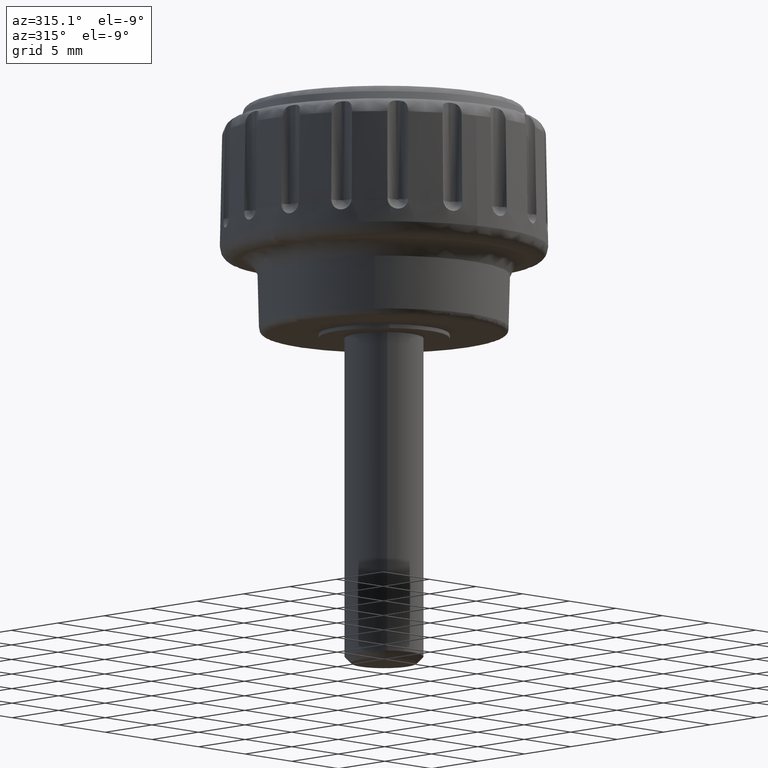
[diagram: clean part render]
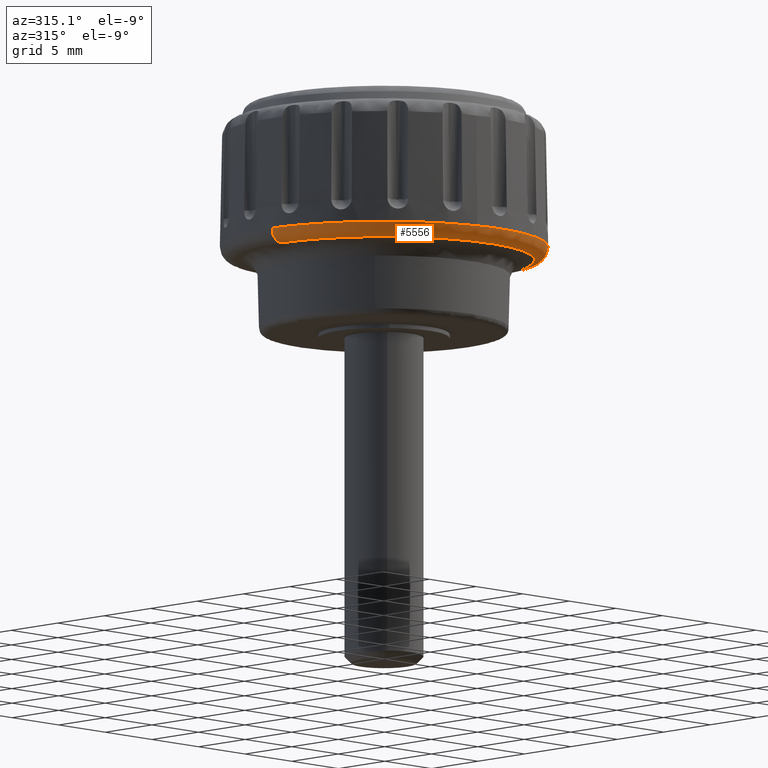
[diagram: same view with one face highlighted and labeled with its STEP entity id]
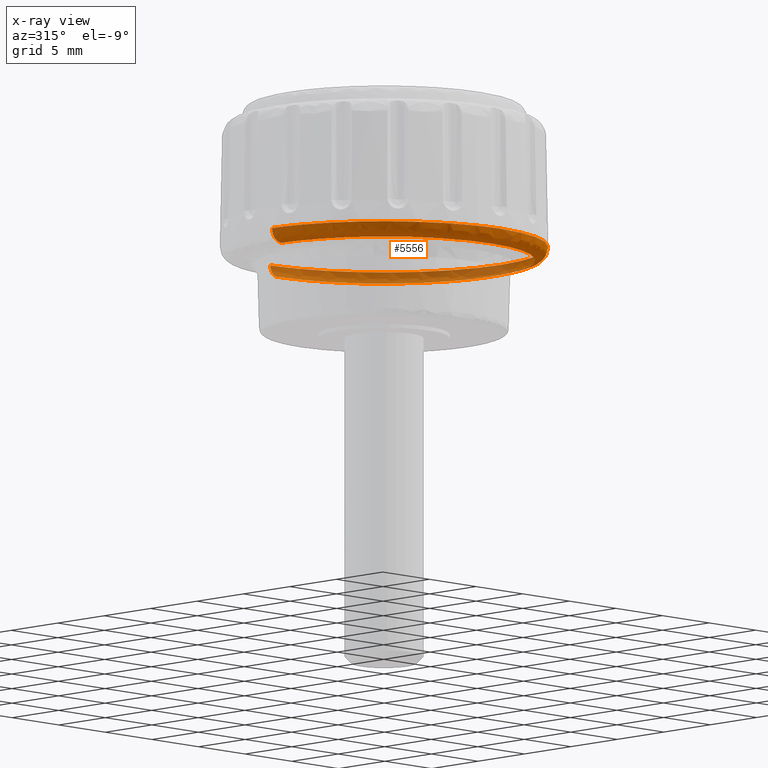
[diagram: x-ray of the same camera — body ghosted, the highlighted face saturated]
A machine part, auxiliary view. The second image highlights one B-rep face of the part: STEP entity #5556.
The next image is the same camera in x-ray: the body ghosted, the highlighted face saturated — about 37% of this face is hidden behind the body in this view.
In plain terms, the highlighted face is a freeform B-spline surface patch.
Its self-contained STEP definition (entity closure, byte-faithful):
#1913=CARTESIAN_POINT('',(2.914446903844929,12.134245757101640,7.020244848311712));
#1914=VERTEX_POINT('',#1913);
#1915=CARTESIAN_POINT('',(12.479339775979300,0.0,7.020244063727410));
#1916=VERTEX_POINT('',#1915);
#1917=CARTESIAN_POINT('',(2.914446903844929,12.134245757101640,7.020244848311712));
#1918=CARTESIAN_POINT('',(3.399610096655220,12.017730701480440,7.020244835623239));
#1919=CARTESIAN_POINT('',(4.376720298687912,11.720061669743661,7.020244806645689));
#1920=CARTESIAN_POINT('',(5.886300649277611,11.049123865005431,7.020244750410749));
#1921=CARTESIAN_POINT('',(7.382687315472131,10.118366461417819,7.020244680233293));
#1922=CARTESIAN_POINT('',(8.840431582089897,8.877807049344654,7.020244593731314));
#1923=CARTESIAN_POINT('',(9.935193952392039,7.608918816061425,7.020244510447437));
#1924=CARTESIAN_POINT('',(10.833394905045610,6.250113309285700,7.020244424854764));
#1925=CARTESIAN_POINT('',(11.453004063922069,5.028399300450916,7.020244350360998));
#1926=CARTESIAN_POINT('',(11.962264473414480,3.641968937104353,7.020244268364826));
#1927=CARTESIAN_POINT('',(12.364128265041851,2.017501421185323,7.020244174844168));
#1928=CARTESIAN_POINT('',(12.479426310907060,0.759289723549299,7.020244104976773));
#1929=CARTESIAN_POINT('',(12.479339775979300,0.0,7.020244063727410));
#1930=B_SPLINE_CURVE_WITH_KNOTS('',3,(#1917,#1918,#1919,#1920,#1921,#1922,#1923,#1924,#1925,#1926,#1927,#1928,#1929),.UNSPECIFIED.,.F.,.U.,(4,1,1,1,1,1,1,1,1,1,4),(0.000000013760989,1.496874883908451,3.058834941180857,4.946209869346665,6.768495263843622,8.786022795933356,9.957486672167367,11.649616012552389,12.886172091508699,14.383055982069781,16.660907701439619),.UNSPECIFIED.);
#1931=EDGE_CURVE('',#1914,#1916,#1930,.T.);
#2613=CARTESIAN_POINT('',(-2.215691117754196,-12.281068106917470,7.020244594559211));
#2614=VERTEX_POINT('',#2613);
#2620=CARTESIAN_POINT('',(0.235205370654172,-12.477123052929890,7.020244063727410));
#2621=VERTEX_POINT('',#2620);
#2622=CARTESIAN_POINT('',(0.235205370654172,-12.477123052929890,7.020244063727410));
#2623=CARTESIAN_POINT('',(-0.585559114056622,-12.492653480853249,7.020244241293555));
#2624=CARTESIAN_POINT('',(-1.407833844665075,-12.426891777500630,7.020244419387384));
#2625=CARTESIAN_POINT('',(-2.215691117754196,-12.281068106917470,7.020244594559211));
#2626=B_SPLINE_CURVE_WITH_KNOTS('',3,(#2622,#2623,#2624,#2625),.UNSPECIFIED.,.F.,.U.,(4,4),(3.176965E-010,2.462723699262299),.UNSPECIFIED.);
#2627=EDGE_CURVE('',#2621,#2614,#2626,.T.);
#2629=CARTESIAN_POINT('',(12.479339775979300,0.0,7.020244063727410));
#2630=CARTESIAN_POINT('',(12.479345198028289,-0.428699316055713,7.020244060972424));
#2631=CARTESIAN_POINT('',(12.429921493944130,-1.386973151964286,7.020244055137916));
#2632=CARTESIAN_POINT('',(12.186735262928810,-2.832255620254348,7.020244047442616));
#2633=CARTESIAN_POINT('',(11.788058172133731,-4.163369228497104,7.020244041499216));
#2634=CARTESIAN_POINT('',(11.255074436008959,-5.445214427778428,7.020244036752022));
#2635=CARTESIAN_POINT('',(10.588612693714090,-6.664788305308308,7.020244033279019));
#2636=CARTESIAN_POINT('',(9.746708644953271,-7.833102228852622,7.020244031284374));
#2637=CARTESIAN_POINT('',(8.749427528950301,-8.939598993400301,7.020244030704459));
#2638=CARTESIAN_POINT('',(7.665241974955558,-9.888675197629326,7.020244031705326));
#2639=CARTESIAN_POINT('',(6.368285871324939,-10.766036458148470,7.020244034560338));
#2640=CARTESIAN_POINT('',(5.178244161969294,-11.380372055625980,7.020244038405597));
#2641=CARTESIAN_POINT('',(3.907716969310209,-11.873830818655520,7.020244043554594));
#2642=CARTESIAN_POINT('',(2.325517107600600,-12.312485795654080,7.020244051096810));
#2643=CARTESIAN_POINT('',(1.042043679483106,-12.462024292436819,7.020244058540764));
#2644=CARTESIAN_POINT('',(0.235205370654172,-12.477123052929890,7.020244063727410));
#2645=B_SPLINE_CURVE_WITH_KNOTS('',3,(#2629,#2630,#2631,#2632,#2633,#2634,#2635,#2636,#2637,#2638,#2639,#2640,#2641,#2642,#2643,#2644),.UNSPECIFIED.,.F.,.U.,(4,1,1,1,1,1,1,1,1,1,1,1,1,4),(0.000000015402009,1.286099444482971,2.874828309489672,4.387904935526157,5.447058304347095,7.035789087986103,8.548863698983331,9.759299808151161,11.499330465493660,12.861105013138760,14.449829750327631,15.508981849974820,16.946397836414050,19.367311440243419),.UNSPECIFIED.);
#2646=EDGE_CURVE('',#1916,#2621,#2645,.T.);
#2673=CARTESIAN_POINT('',(0.243636251334517,12.476961270290680,7.020244224086004));
#2674=VERTEX_POINT('',#2673);
#2675=CARTESIAN_POINT('',(0.243636251334517,12.476961270290680,7.020244224086004));
#2676=CARTESIAN_POINT('',(1.142791681229451,12.459471636268081,7.020244433767296));
#2677=CARTESIAN_POINT('',(2.040012828473089,12.344388544948000,7.020244643466857));
#2678=CARTESIAN_POINT('',(2.914446903844929,12.134245757101640,7.020244848311712));
#2679=B_SPLINE_CURVE_WITH_KNOTS('',3,(#2675,#2676,#2677,#2678),.UNSPECIFIED.,.F.,.U.,(4,4),(2.232419E-010,2.697965647910356),.UNSPECIFIED.);
#2680=EDGE_CURVE('',#2674,#1914,#2679,.T.);
#2703=CARTESIAN_POINT('',(-12.470472860376169,-0.470348596142471,7.020244224137949));
#2704=VERTEX_POINT('',#2703);
#2710=CARTESIAN_POINT('',(-2.215691117754196,-12.281068106917470,7.020244594559211));
#2711=CARTESIAN_POINT('',(-2.800554297557448,-12.175578858922760,7.020244593699585));
#2712=CARTESIAN_POINT('',(-3.976534147297959,-11.875342393444051,7.020244588827159));
#2713=CARTESIAN_POINT('',(-5.768973581183829,-11.127204139640890,7.020244571036953));
#2714=CARTESIAN_POINT('',(-7.400848875240683,-10.111259687742651,7.020244542895923));
#2715=CARTESIAN_POINT('',(-8.702614746706756,-8.985645119600310,7.020244509203824));
#2716=CARTESIAN_POINT('',(-9.800882492215829,-7.779993691739545,7.020244471646201));
#2717=CARTESIAN_POINT('',(-10.701127686171720,-6.496925345208597,7.020244430343769));
#2718=CARTESIAN_POINT('',(-11.426166803037439,-5.084389895042116,7.020244383553010));
#2719=CARTESIAN_POINT('',(-11.947072634408110,-3.702494245344731,7.020244336841762));
#2720=CARTESIAN_POINT('',(-12.325480147666870,-2.182959842720413,7.020244284513296));
#2721=CARTESIAN_POINT('',(-12.448101102727399,-1.064227680056931,7.020244245212531));
#2722=CARTESIAN_POINT('',(-12.470472860376169,-0.470348596142471,7.020244224137949));
#2723=B_SPLINE_CURVE_WITH_KNOTS('',3,(#2710,#2711,#2712,#2713,#2714,#2715,#2716,#2717,#2718,#2719,#2720,#2721,#2722),.UNSPECIFIED.,.F.,.U.,(4,1,1,1,1,1,1,1,1,1,4),(0.000000014246535,1.782899683378876,3.631837068624668,5.810947974992359,7.527812766868262,8.782434104507743,10.697415301169089,12.216185422671650,13.536855623499211,15.121661906826271,16.904560266523500),.UNSPECIFIED.);
#2724=EDGE_CURVE('',#2614,#2704,#2723,.T.);
#5434=CARTESIAN_POINT('',(0.243560200035291,12.473066589279085,7.090464935737364));
#5435=CARTESIAN_POINT('',(12.022543539732435,12.243059676552834,7.090464935737362));
#5436=CARTESIAN_POINT('',(12.466580204734974,0.470201776412435,7.090464935737362));
#5437=CARTESIAN_POINT('',(12.936781981147409,-11.996378428322538,7.090464935737365));
#5438=CARTESIAN_POINT('',(0.470201776412436,-12.466580204734974,7.090464935737362));
#5439=CARTESIAN_POINT('',(-11.996378428322535,-12.936781981147412,7.090464935737365));
#5440=CARTESIAN_POINT('',(-12.466580204734974,-0.470201776412431,7.090464935737362));
#5441=CARTESIAN_POINT('',(0.245635878921216,12.579365077120489,5.920035688234066));
#5442=CARTESIAN_POINT('',(12.125002561267644,12.347397989898189,5.920035688234067));
#5443=CARTESIAN_POINT('',(12.572823414039732,0.474208949584744,5.920035688234068));
#5444=CARTESIAN_POINT('',(13.047032363624474,-12.098614464454982,5.920035688234064));
#5445=CARTESIAN_POINT('',(0.474208949584745,-12.572823414039732,5.920035688234068));
#5446=CARTESIAN_POINT('',(-12.098614464454982,-13.047032363624474,5.920035688234064));
#5447=CARTESIAN_POINT('',(-12.572823414039732,-0.474208949584740,5.920035688234068));
#5448=CARTESIAN_POINT('',(0.222747812660904,11.407234431295230,6.002462540117822));
#5449=CARTESIAN_POINT('',(10.995208887609129,11.196881768178532,6.002462540117821));
#5450=CARTESIAN_POINT('',(11.401302312792005,0.430022709744719,6.002462540117821));
#5451=CARTESIAN_POINT('',(11.831325022536726,-10.971279603047288,6.002462540117820));
#5452=CARTESIAN_POINT('',(0.430022709744719,-11.401302312792005,6.002462540117821));
#5453=CARTESIAN_POINT('',(-10.971279603047288,-11.831325022536726,6.002462540117820));
#5454=CARTESIAN_POINT('',(-11.401302312792005,-0.430022709744715,6.002462540117821));
#5462=(BOUNDED_SURFACE()B_SPLINE_SURFACE(2,2,((#5434,#5441,#5448),(#5435,#5442,#5449),(#5436,#5443,#5450),(#5437,#5444,#5451),(#5438,#5445,#5452),(#5439,#5446,#5453),(#5440,#5447,#5454)),.UNSPECIFIED.,.F.,.F.,.U.)B_SPLINE_SURFACE_WITH_KNOTS((3,2,2,3),(3,3),(0.0,19.843193265011490,40.513186249398451,61.183179233785417),(0.0,1.848515857226823),.UNSPECIFIED.)GEOMETRIC_REPRESENTATION_ITEM()RATIONAL_B_SPLINE_SURFACE(((0.893442871583781,0.579620158140347,0.895400972402263),(0.657005663717428,0.426231758979666,0.658445580435988),(0.914002628789551,0.592958279806493,0.916005789094982),(0.646297456839423,0.419284820611881,0.647713905075197),(0.914002628789551,0.592958279806493,0.916005789094982),(0.646297456839423,0.419284820611881,0.647713905075197),(0.914002628789551,0.592958279806493,0.916005789094982)))REPRESENTATION_ITEM('')SURFACE());
#5463=ORIENTED_EDGE('',*,*,#2680,.T.);
#5464=ORIENTED_EDGE('',*,*,#1931,.T.);
#5465=ORIENTED_EDGE('',*,*,#2646,.T.);
#5466=ORIENTED_EDGE('',*,*,#2627,.T.);
#5467=ORIENTED_EDGE('',*,*,#2724,.T.);
#5468=CARTESIAN_POINT('',(-11.471389542278169,-0.432666191569736,6.000000000000319));
#5469=VERTEX_POINT('',#5468);
#5470=CARTESIAN_POINT('',(-12.470472860376169,-0.470348596142471,7.020244224137949));
#5471=CARTESIAN_POINT('',(-12.471815061050370,-0.470399219867572,6.953968773798331));
#5472=CARTESIAN_POINT('',(-12.459330155234881,-0.469928326873107,6.796227551094516));
#5473=CARTESIAN_POINT('',(-12.389330664015169,-0.467288157466956,6.581531946653136));
#5474=CARTESIAN_POINT('',(-12.271571868133430,-0.462846651399162,6.390027774103063));
#5475=CARTESIAN_POINT('',(-12.135376322356670,-0.457709766849995,6.243848056981501));
#5476=CARTESIAN_POINT('',(-11.973001236879320,-0.451585469175279,6.127475021194790));
#5477=CARTESIAN_POINT('',(-11.752902012714600,-0.443283991404678,6.028404839768322));
#5478=CARTESIAN_POINT('',(-11.579047814260500,-0.436726736309962,5.999938855730730));
#5479=CARTESIAN_POINT('',(-11.471389542278169,-0.432666191569736,6.000000000000319));
#5480=B_SPLINE_CURVE_WITH_KNOTS('',3,(#5470,#5471,#5472,#5473,#5474,#5475,#5476,#5477,#5478,#5479),.UNSPECIFIED.,.F.,.U.,(4,1,1,1,1,1,1,4),(0.000000028766090,0.198876413884139,0.472354584867229,0.671246527265676,0.870116115985862,1.069002743957115,1.267895341970568,1.591081542972834),.UNSPECIFIED.);
#5481=EDGE_CURVE('',#2704,#5469,#5480,.T.);
#5482=ORIENTED_EDGE('',*,*,#5481,.T.);
#5483=CARTESIAN_POINT('',(0.216351632203362,-11.477507061089490,5.999999999999800));
#5484=VERTEX_POINT('',#5483);
#5485=CARTESIAN_POINT('',(0.216351632203362,-11.477507061089490,5.999999999999800));
#5486=CARTESIAN_POINT('',(-0.595424073859343,-11.492934629101770,5.999999999999805));
#5487=CARTESIAN_POINT('',(-1.803840472780912,-11.387046941041310,5.999999999999877));
#5488=CARTESIAN_POINT('',(-3.426383319214409,-10.981554409108780,5.999999999999854));
#5489=CARTESIAN_POINT('',(-4.776424461317065,-10.478022711921421,6.000000000000011));
#5490=CARTESIAN_POINT('',(-6.272166230960952,-9.673691737741532,5.999999999999859));
#5491=CARTESIAN_POINT('',(-7.565475406942769,-8.682139334118647,6.000000000000249));
#5492=CARTESIAN_POINT('',(-8.725716900135515,-7.510075173125964,5.999999999999909));
#5493=CARTESIAN_POINT('',(-9.612896170940617,-6.343033438363198,6.000000000000234));
#5494=CARTESIAN_POINT('',(-10.305617525201120,-5.106155924656250,6.000000000000336));
#5495=CARTESIAN_POINT('',(-10.817366273840330,-3.910682800785889,6.000000000000160));
#5496=CARTESIAN_POINT('',(-11.277471471318620,-2.398505512515658,6.000000000000329));
#5497=CARTESIAN_POINT('',(-11.443505060214971,-1.174466908664739,6.000000000000262));
#5498=CARTESIAN_POINT('',(-11.471389542278169,-0.432666191569736,6.000000000000319));
#5499=B_SPLINE_CURVE_WITH_KNOTS('',3,(#5485,#5486,#5487,#5488,#5489,#5490,#5491,#5492,#5493,#5494,#5495,#5496,#5497,#5498),.UNSPECIFIED.,.F.,.U.,(4,1,1,1,1,1,1,1,1,1,1,4),(0.000000017321231,2.435732192587011,3.618803778868767,5.010654311774630,6.750469732473242,8.699063569653719,9.882118271603538,11.691518320571859,13.083368191267120,14.127256184219529,15.588695955480389,17.815651778634169),.UNSPECIFIED.);
#5500=EDGE_CURVE('',#5484,#5469,#5499,.T.);
#5501=ORIENTED_EDGE('',*,*,#5500,.F.);
#5502=CARTESIAN_POINT('',(11.479545999999999,0.0,5.999999999999800));
#5503=VERTEX_POINT('',#5502);
#5504=CARTESIAN_POINT('',(11.479545999999999,0.0,5.999999999999800));
#5505=CARTESIAN_POINT('',(11.479554379924499,-0.417553130755122,5.999999999999788));
#5506=CARTESIAN_POINT('',(11.430134613000350,-1.322253822673034,5.999999999999772));
#5507=CARTESIAN_POINT('',(11.186397123385991,-2.719062404778891,5.999999999999758));
#5508=CARTESIAN_POINT('',(10.797753536347241,-3.961655661775041,5.999999999999726));
#5509=CARTESIAN_POINT('',(10.317420946670980,-5.069188590558366,5.999999999999692));
#5510=CARTESIAN_POINT('',(9.771604877572827,-6.067964832210825,5.999999999999756));
#5511=CARTESIAN_POINT('',(8.920638422838735,-7.287535051272838,5.999999999999700));
#5512=CARTESIAN_POINT('',(7.887215798504673,-8.392976964275176,5.999999999999685));
#5513=CARTESIAN_POINT('',(6.604239056872075,-9.429682331163379,5.999999999999686));
#5514=CARTESIAN_POINT('',(5.453427165341986,-10.134159832030869,5.999999999999904));
#5515=CARTESIAN_POINT('',(4.249204029679613,-10.683565981534130,5.999999999999372));
#5516=CARTESIAN_POINT('',(3.062988888768470,-11.091296353417190,5.999999999999999));
#5517=CARTESIAN_POINT('',(1.699521262550436,-11.385959422378560,5.999999999999707));
#5518=CARTESIAN_POINT('',(0.703408722816018,-11.468338382423960,5.999999999999795));
#5519=CARTESIAN_POINT('',(0.216351632203362,-11.477507061089490,5.999999999999800));
#5520=B_SPLINE_CURVE_WITH_KNOTS('',3,(#5504,#5505,#5506,#5507,#5508,#5509,#5510,#5511,#5512,#5513,#5514,#5515,#5516,#5517,#5518,#5519),.UNSPECIFIED.,.F.,.U.,(4,1,1,1,1,1,1,1,1,1,1,1,1,4),(0.000000017301414,1.252661269520075,2.714108321135631,4.245145210611080,5.149849085700051,6.332922543739111,7.655188008681979,9.603765451327822,10.856433296243891,12.596249585001249,13.640139906187120,14.823217787668479,16.354259591472690,17.815691513467399),.UNSPECIFIED.);
#5521=EDGE_CURVE('',#5503,#5484,#5520,.T.);
#5522=ORIENTED_EDGE('',*,*,#5521,.F.);
#5523=CARTESIAN_POINT('',(0.224117111541005,11.477358099886329,6.000000000000280));
#5524=VERTEX_POINT('',#5523);
#5525=CARTESIAN_POINT('',(0.224117111541005,11.477358099886329,6.000000000000280));
#5526=CARTESIAN_POINT('',(1.081903158863750,11.460784796659670,6.000000000000278));
#5527=CARTESIAN_POINT('',(2.539129377066746,11.267547726938670,6.000000000000159));
#5528=CARTESIAN_POINT('',(4.546622001832314,10.596706135297360,6.000000000000096));
#5529=CARTESIAN_POINT('',(6.028016400307253,9.813895863786202,6.000000000000036));
#5530=CARTESIAN_POINT('',(7.439924650864038,8.794168696913518,5.999999999999940));
#5531=CARTESIAN_POINT('',(8.695830357851783,7.581557377138481,5.999999999999954));
#5532=CARTESIAN_POINT('',(9.751749736530650,6.133869616675867,5.999999999999857));
#5533=CARTESIAN_POINT('',(10.520329879101180,4.674556522649346,5.999999999999876));
#5534=CARTESIAN_POINT('',(11.077066368348911,3.170462555306805,5.999999999999475));
#5535=CARTESIAN_POINT('',(11.410132971753439,1.576736990383056,6.000000000000863));
#5536=CARTESIAN_POINT('',(11.479553611900810,0.486930359625797,5.999999999998972));
#5537=CARTESIAN_POINT('',(11.479545999999999,0.0,5.999999999999800));
#5538=B_SPLINE_CURVE_WITH_KNOTS('',3,(#5525,#5526,#5527,#5528,#5529,#5530,#5531,#5532,#5533,#5534,#5535,#5536,#5537),.UNSPECIFIED.,.F.,.U.,(4,1,1,1,1,1,1,1,1,1,4),(0.000000017245885,2.573794500490275,4.382418810632460,6.330161307013354,7.582280706626721,9.599578604906309,11.547319248402930,12.938569670716319,14.538505655358010,16.347129798310242,17.807924606905029),.UNSPECIFIED.);
#5539=EDGE_CURVE('',#5524,#5503,#5538,.T.);
#5540=ORIENTED_EDGE('',*,*,#5539,.F.);
#5541=CARTESIAN_POINT('',(0.243636251334517,12.476961270290680,7.020244224086004));
#5542=CARTESIAN_POINT('',(0.243679999832408,12.479201695089669,6.912532966634872));
#5543=CARTESIAN_POINT('',(0.243193239282087,12.454273990436951,6.738013240896448));
#5544=CARTESIAN_POINT('',(0.241473689021790,12.366213354536599,6.531124401045769));
#5545=CARTESIAN_POINT('',(0.239528499100688,12.266597386836811,6.377848831046426));
#5546=CARTESIAN_POINT('',(0.237089462225440,12.141690807070241,6.243845848943613));
#5547=CARTESIAN_POINT('',(0.233917147914464,11.979232036409870,6.127476285378719));
#5548=CARTESIAN_POINT('',(0.229617011860466,11.759015894212039,6.028404089491709));
#5549=CARTESIAN_POINT('',(0.226220439292903,11.585072535004629,5.999938902354244));
#5550=CARTESIAN_POINT('',(0.224117111541005,11.477358099886329,6.000000000000280));
#5551=B_SPLINE_CURVE_WITH_KNOTS('',3,(#5541,#5542,#5543,#5544,#5545,#5546,#5547,#5548,#5549,#5550),.UNSPECIFIED.,.F.,.U.,(4,1,1,1,1,1,1,4),(0.000000028765499,0.323186236696073,0.522078838973975,0.671246541655743,0.870116134638452,1.069002766873272,1.267895369151135,1.591081577081548),.UNSPECIFIED.);
#5552=EDGE_CURVE('',#2674,#5524,#5551,.T.);
#5553=ORIENTED_EDGE('',*,*,#5552,.F.);
#5554=EDGE_LOOP('',(#5463,#5464,#5465,#5466,#5467,#5482,#5501,#5522,#5540,#5553));
#5555=FACE_OUTER_BOUND('',#5554,.T.);
#5556=ADVANCED_FACE('',(#5555),#5462,.T.);